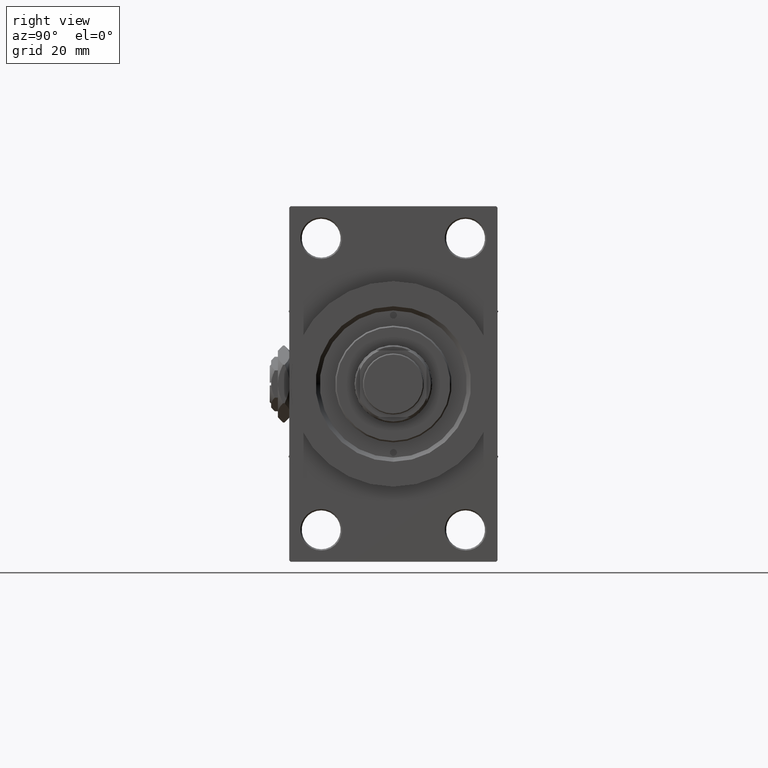
[diagram: clean part render]
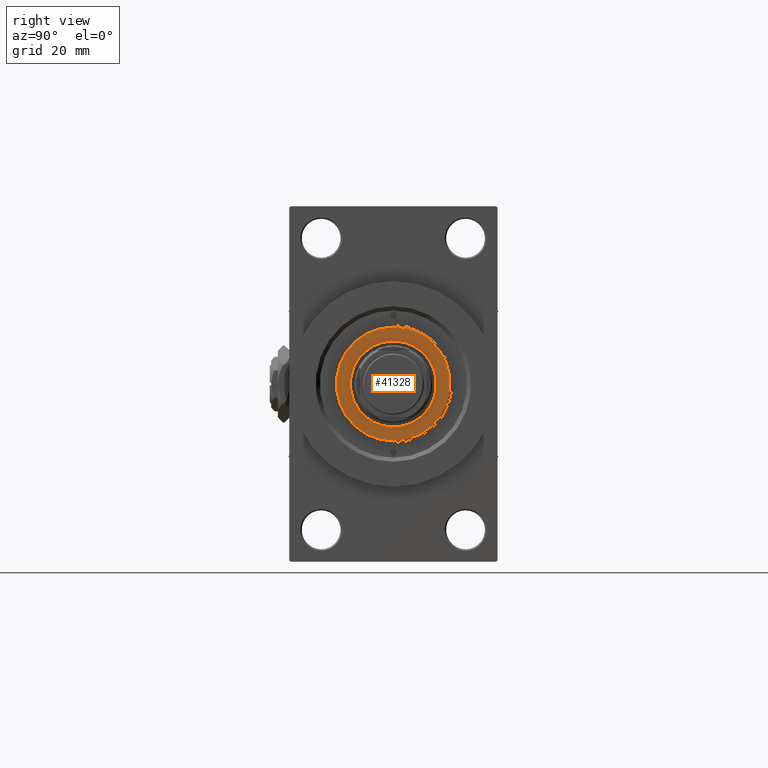
[diagram: same view with one face highlighted and labeled with its STEP entity id]
A machine part, right view. The second image highlights one B-rep face of the part: STEP entity #41328.
In plain terms, the highlighted planar face has unit normal (1, -0, -0).
Its self-contained STEP definition (entity closure, byte-faithful):
#640 = DIRECTION ( 'NONE',  ( 1.000000000000000000, 0.000000000000000000, 0.000000000000000000 ) ) ;
#890 = EDGE_CURVE ( 'NONE', #40180, #36126, #26367, .T. ) ;
#3422 = AXIS2_PLACEMENT_3D ( 'NONE', #20936, #13343, #29269 ) ;
#3618 = DIRECTION ( 'NONE',  ( 0.000000000000000000, 0.000000000000000000, 1.000000000000000000 ) ) ;
#4600 = AXIS2_PLACEMENT_3D ( 'NONE', #17467, #41201, #13919 ) ;
#5675 = DIRECTION ( 'NONE',  ( 0.000000000000000000, 0.000000000000000000, 1.000000000000000000 ) ) ;
#6651 = CIRCLE ( 'NONE', #3422, 20.50000000000000355 ) ;
#7154 = CARTESIAN_POINT ( 'NONE',  ( 0.000000000000000000, 0.000000000000000000, 52.25999999999999801 ) ) ;
#7441 = DIRECTION ( 'NONE',  ( 0.000000000000000000, 0.000000000000000000, 1.000000000000000000 ) ) ;
#9210 = CARTESIAN_POINT ( 'NONE',  ( 0.000000000000000000, 0.000000000000000000, 52.25999999999999801 ) ) ;
#11038 = CIRCLE ( 'NONE', #37647, 15.50000000000000000 ) ;
#12075 = ORIENTED_EDGE ( 'NONE', *, *, #890, .T. ) ;
#13098 = VERTEX_POINT ( 'NONE', #27064 ) ;
#13122 = CARTESIAN_POINT ( 'NONE',  ( 20.50000000000000355, 2.541142108230758269E-15, 52.25999999999999801 ) ) ;
#13343 = DIRECTION ( 'NONE',  ( 0.000000000000000000, 0.000000000000000000, 1.000000000000000000 ) ) ;
#13919 = DIRECTION ( 'NONE',  ( 1.000000000000000000, 0.000000000000000000, 0.000000000000000000 ) ) ;
#16522 = FACE_OUTER_BOUND ( 'NONE', #24989, .T. ) ;
#17467 = CARTESIAN_POINT ( 'NONE',  ( 0.000000000000000000, 0.000000000000000000, 52.25999999999999801 ) ) ;
#20936 = CARTESIAN_POINT ( 'NONE',  ( 0.000000000000000000, 0.000000000000000000, 52.25999999999999801 ) ) ;
#22551 = DIRECTION ( 'NONE',  ( 1.000000000000000000, 0.000000000000000000, 0.000000000000000000 ) ) ;
#23583 = ORIENTED_EDGE ( 'NONE', *, *, #49232, .F. ) ;
#24989 = EDGE_LOOP ( 'NONE', ( #40486, #12075 ) ) ;
#25364 = AXIS2_PLACEMENT_3D ( 'NONE', #9210, #5675, #40030 ) ;
#26359 = AXIS2_PLACEMENT_3D ( 'NONE', #7154, #3618, #22551 ) ;
#26367 = CIRCLE ( 'NONE', #4600, 20.50000000000000355 ) ;
#27064 = CARTESIAN_POINT ( 'NONE',  ( -15.50000000000000000, 1.898202538678397557E-15, 52.25999999999999801 ) ) ;
#29269 = DIRECTION ( 'NONE',  ( 1.000000000000000000, 0.000000000000000000, 0.000000000000000000 ) ) ;
#30950 = CARTESIAN_POINT ( 'NONE',  ( 15.50000000000000000, 0.000000000000000000, 52.25999999999999801 ) ) ;
#31501 = VERTEX_POINT ( 'NONE', #30950 ) ;
#31950 = PLANE ( 'NONE',  #25364 ) ;
#33409 = EDGE_CURVE ( 'NONE', #36126, #40180, #6651, .T. ) ;
#34966 = CARTESIAN_POINT ( 'NONE',  ( 0.000000000000000000, 0.000000000000000000, 52.25999999999999801 ) ) ;
#35737 = FACE_BOUND ( 'NONE', #42094, .T. ) ;
#36126 = VERTEX_POINT ( 'NONE', #43302 ) ;
#37647 = AXIS2_PLACEMENT_3D ( 'NONE', #34966, #7441, #640 ) ;
#40030 = DIRECTION ( 'NONE',  ( 1.000000000000000000, 0.000000000000000000, -0.000000000000000000 ) ) ;
#40180 = VERTEX_POINT ( 'NONE', #13122 ) ;
#40486 = ORIENTED_EDGE ( 'NONE', *, *, #33409, .T. ) ;
#41201 = DIRECTION ( 'NONE',  ( 0.000000000000000000, 0.000000000000000000, 1.000000000000000000 ) ) ;
#41288 = ORIENTED_EDGE ( 'NONE', *, *, #49771, .F. ) ;
#41328 = ADVANCED_FACE ( 'NONE', ( #35737, #16522 ), #31950, .T. ) ;
#42094 = EDGE_LOOP ( 'NONE', ( #41288, #23583 ) ) ;
#43302 = CARTESIAN_POINT ( 'NONE',  ( -20.50000000000000355, 0.000000000000000000, 52.25999999999999801 ) ) ;
#48163 = CIRCLE ( 'NONE', #26359, 15.50000000000000000 ) ;
#49232 = EDGE_CURVE ( 'NONE', #13098, #31501, #11038, .T. ) ;
#49771 = EDGE_CURVE ( 'NONE', #31501, #13098, #48163, .T. ) ;